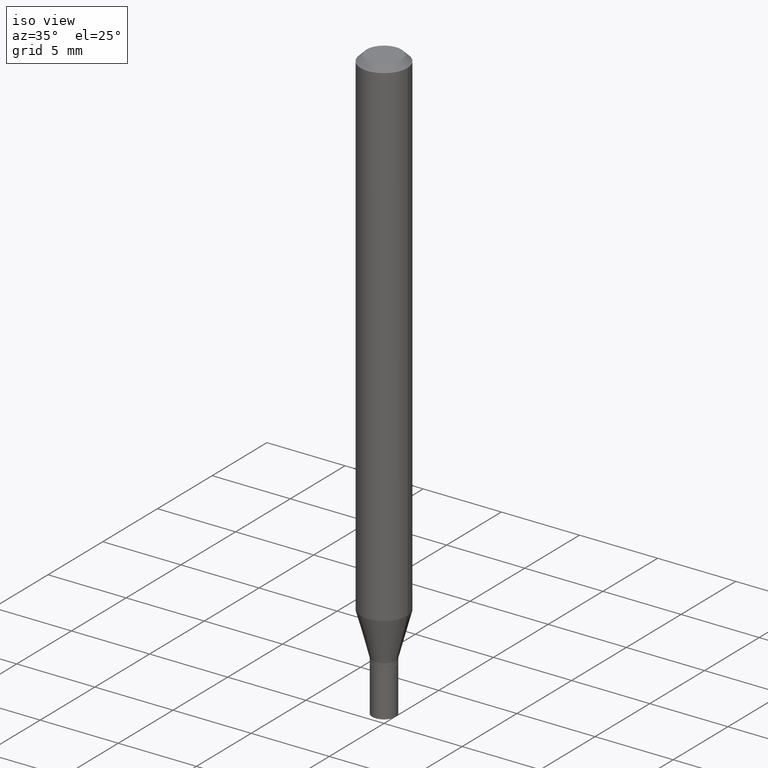
[diagram: clean part render]
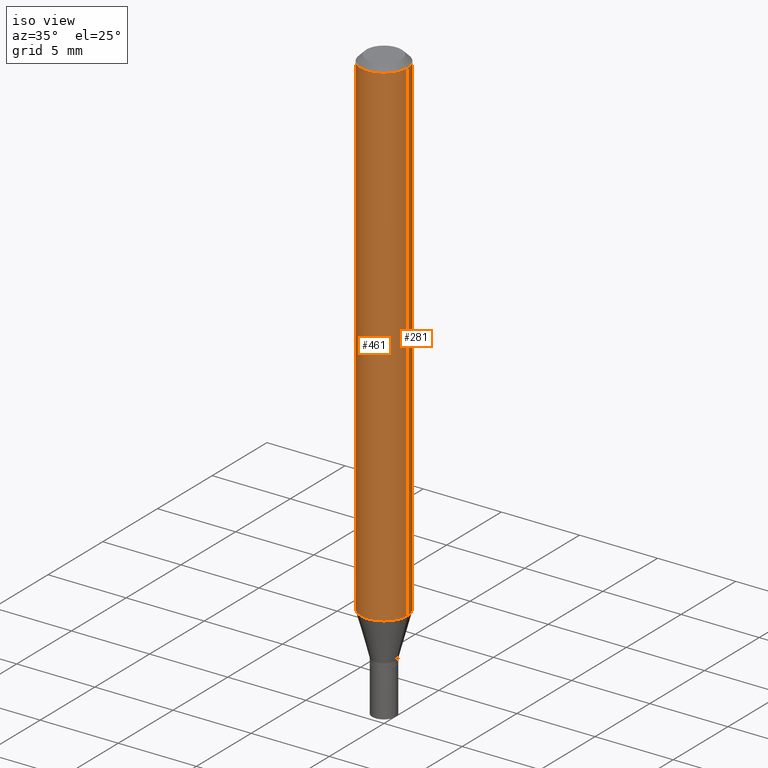
[diagram: same view with one multi-face feature highlighted, each face labeled with its STEP entity id]
A machine part, iso view. The highlighted faces form ONE feature: a constant-radius fillet chain: 2 tangent blend faces with common blend radius 1.4999 mm. The faces share edges in the B-rep.
Their STEP definitions:
[1] entity #461 (Cylinder):
#4 = DIRECTION ( 'NONE',  ( -2.445468806185136597E-29, 3.491481338843145583E-15, 1.000000000000000000 ) ) ;
#21 = CARTESIAN_POINT ( 'NONE',  ( 0.05905000000000000526, -4.123439461173741313E-16, 2.879382386107500571E-30 ) ) ;
#25 = CARTESIAN_POINT ( 'NONE',  ( 0.05904999999999999832, -4.818259963378055761E-15, -1.261904501176718707 ) ) ;
#49 = CARTESIAN_POINT ( 'NONE',  ( -0.05904999999999999832, -3.986340531794342137E-15, -1.261904501176718707 ) ) ;
#77 = DIRECTION ( 'NONE',  ( -2.445468806185136597E-29, 3.491481338843145583E-15, 1.000000000000000000 ) ) ;
#133 = CARTESIAN_POINT ( 'NONE',  ( 0.05905000000000001914, -4.647161662000214077E-16, -0.01499999999999999944 ) ) ;
#139 = EDGE_CURVE ( 'NONE', #221, #360, #423, .T. ) ;
#173 = DIRECTION ( 'NONE',  ( -2.445468806185136877E-29, 3.491481338843145188E-15, 1.000000000000000000 ) ) ;
#179 = DIRECTION ( 'NONE',  ( -2.445468806185136877E-29, 3.491481338843145188E-15, 1.000000000000000000 ) ) ;
#181 = ORIENTED_EDGE ( 'NONE', *, *, #450, .T. ) ;
#203 = CIRCLE ( 'NONE', #391, 0.05905000000000001914 ) ;
#208 = LINE ( 'NONE', #345, #317 ) ;
#217 = DIRECTION ( 'NONE',  ( -2.445468806185136597E-29, 3.491481338843145583E-15, 1.000000000000000000 ) ) ;
#220 = DIRECTION ( 'NONE',  ( 1.000000000000000000, -6.982962677686266711E-15, 0.000000000000000000 ) ) ;
#221 = VERTEX_POINT ( 'NONE', #49 ) ;
#239 = CARTESIAN_POINT ( 'NONE',  ( -0.05905000000000002608, -1.809568633205325453E-15, -0.01499999999999999944 ) ) ;
#279 = ORIENTED_EDGE ( 'NONE', *, *, #139, .T. ) ;
#293 = EDGE_CURVE ( 'NONE', #392, #355, #203, .T. ) ;
#313 = FACE_OUTER_BOUND ( 'NONE', #435, .T. ) ;
#317 = VECTOR ( 'NONE', #179, 39.37007874015748143 ) ;
#322 = DIRECTION ( 'NONE',  ( 1.000000000000000000, -6.982962677686267499E-15, 4.876176775795936353E-29 ) ) ;
#323 = ORIENTED_EDGE ( 'NONE', *, *, #293, .F. ) ;
#334 = CARTESIAN_POINT ( 'NONE',  ( 3.085948094012280841E-29, -4.405916017260681630E-15, -1.261904501176718707 ) ) ;
#341 = LINE ( 'NONE', #21, #464 ) ;
#345 = CARTESIAN_POINT ( 'NONE',  ( -0.05905000000000000526, 4.195754854663391971E-16, -2.904631170795522242E-30 ) ) ;
#355 = VERTEX_POINT ( 'NONE', #133 ) ;
#360 = VERTEX_POINT ( 'NONE', #25 ) ;
#391 = AXIS2_PLACEMENT_3D ( 'NONE', #399, #77, #220 ) ;
#392 = VERTEX_POINT ( 'NONE', #239 ) ;
#399 = CARTESIAN_POINT ( 'NONE',  ( 3.668203209277705088E-31, -5.237222008264718399E-17, -0.01499999999999999944 ) ) ;
#402 = AXIS2_PLACEMENT_3D ( 'NONE', #334, #4, #403 ) ;
#403 = DIRECTION ( 'NONE',  ( 1.000000000000000000, -6.982962677686273021E-15, 0.000000000000000000 ) ) ;
#412 = AXIS2_PLACEMENT_3D ( 'NONE', #454, #217, #322 ) ;
#423 = CIRCLE ( 'NONE', #402, 0.05904999999999999832 ) ;
#426 = ORIENTED_EDGE ( 'NONE', *, *, #443, .F. ) ;
#435 = EDGE_LOOP ( 'NONE', ( #426, #279, #181, #323 ) ) ;
#443 = EDGE_CURVE ( 'NONE', #221, #392, #208, .T. ) ;
#449 = CYLINDRICAL_SURFACE ( 'NONE', #412, 0.05905000000000000526 ) ;
#450 = EDGE_CURVE ( 'NONE', #360, #355, #341, .T. ) ;
#454 = CARTESIAN_POINT ( 'NONE',  ( 0.000000000000000000, 0.000000000000000000, 0.000000000000000000 ) ) ;
#461 = ADVANCED_FACE ( 'NONE', ( #313 ), #449, .T. ) ;
#464 = VECTOR ( 'NONE', #173, 39.37007874015748143 ) ;
[2] entity #281 (Cylinder):
#21 = CARTESIAN_POINT ( 'NONE',  ( 0.05905000000000000526, -4.123439461173741313E-16, 2.879382386107500571E-30 ) ) ;
#25 = CARTESIAN_POINT ( 'NONE',  ( 0.05904999999999999832, -4.818259963378055761E-15, -1.261904501176718707 ) ) ;
#49 = CARTESIAN_POINT ( 'NONE',  ( -0.05904999999999999832, -3.986340531794342137E-15, -1.261904501176718707 ) ) ;
#51 = EDGE_CURVE ( 'NONE', #355, #392, #243, .T. ) ;
#71 = AXIS2_PLACEMENT_3D ( 'NONE', #101, #131, #94 ) ;
#85 = DIRECTION ( 'NONE',  ( -2.445468806185136597E-29, 3.491481338843145583E-15, 1.000000000000000000 ) ) ;
#94 = DIRECTION ( 'NONE',  ( 1.000000000000000000, -6.982962677686273021E-15, 0.000000000000000000 ) ) ;
#101 = CARTESIAN_POINT ( 'NONE',  ( 3.085948094012280841E-29, -4.405916017260681630E-15, -1.261904501176718707 ) ) ;
#130 = EDGE_LOOP ( 'NONE', ( #377, #315, #425, #149 ) ) ;
#131 = DIRECTION ( 'NONE',  ( -2.445468806185136597E-29, 3.491481338843145583E-15, 1.000000000000000000 ) ) ;
#133 = CARTESIAN_POINT ( 'NONE',  ( 0.05905000000000001914, -4.647161662000214077E-16, -0.01499999999999999944 ) ) ;
#149 = ORIENTED_EDGE ( 'NONE', *, *, #450, .F. ) ;
#150 = AXIS2_PLACEMENT_3D ( 'NONE', #229, #85, #262 ) ;
#173 = DIRECTION ( 'NONE',  ( -2.445468806185136877E-29, 3.491481338843145188E-15, 1.000000000000000000 ) ) ;
#179 = DIRECTION ( 'NONE',  ( -2.445468806185136877E-29, 3.491481338843145188E-15, 1.000000000000000000 ) ) ;
#193 = CARTESIAN_POINT ( 'NONE',  ( 3.668203209277705088E-31, -5.237222008264718399E-17, -0.01499999999999999944 ) ) ;
#208 = LINE ( 'NONE', #345, #317 ) ;
#221 = VERTEX_POINT ( 'NONE', #49 ) ;
#229 = CARTESIAN_POINT ( 'NONE',  ( 0.000000000000000000, 0.000000000000000000, 0.000000000000000000 ) ) ;
#239 = CARTESIAN_POINT ( 'NONE',  ( -0.05905000000000002608, -1.809568633205325453E-15, -0.01499999999999999944 ) ) ;
#243 = CIRCLE ( 'NONE', #333, 0.05905000000000001914 ) ;
#262 = DIRECTION ( 'NONE',  ( 1.000000000000000000, -6.982962677686267499E-15, 4.876176775795936353E-29 ) ) ;
#281 = ADVANCED_FACE ( 'NONE', ( #303 ), #441, .T. ) ;
#303 = FACE_OUTER_BOUND ( 'NONE', #130, .T. ) ;
#311 = CIRCLE ( 'NONE', #71, 0.05904999999999999832 ) ;
#315 = ORIENTED_EDGE ( 'NONE', *, *, #443, .T. ) ;
#317 = VECTOR ( 'NONE', #179, 39.37007874015748143 ) ;
#329 = DIRECTION ( 'NONE',  ( 1.000000000000000000, -6.982962677686266711E-15, 0.000000000000000000 ) ) ;
#332 = DIRECTION ( 'NONE',  ( -2.445468806185136597E-29, 3.491481338843145583E-15, 1.000000000000000000 ) ) ;
#333 = AXIS2_PLACEMENT_3D ( 'NONE', #193, #332, #329 ) ;
#341 = LINE ( 'NONE', #21, #464 ) ;
#345 = CARTESIAN_POINT ( 'NONE',  ( -0.05905000000000000526, 4.195754854663391971E-16, -2.904631170795522242E-30 ) ) ;
#355 = VERTEX_POINT ( 'NONE', #133 ) ;
#360 = VERTEX_POINT ( 'NONE', #25 ) ;
#377 = ORIENTED_EDGE ( 'NONE', *, *, #427, .T. ) ;
#392 = VERTEX_POINT ( 'NONE', #239 ) ;
#425 = ORIENTED_EDGE ( 'NONE', *, *, #51, .F. ) ;
#427 = EDGE_CURVE ( 'NONE', #360, #221, #311, .T. ) ;
#441 = CYLINDRICAL_SURFACE ( 'NONE', #150, 0.05905000000000000526 ) ;
#443 = EDGE_CURVE ( 'NONE', #221, #392, #208, .T. ) ;
#450 = EDGE_CURVE ( 'NONE', #360, #355, #341, .T. ) ;
#464 = VECTOR ( 'NONE', #173, 39.37007874015748143 ) ;